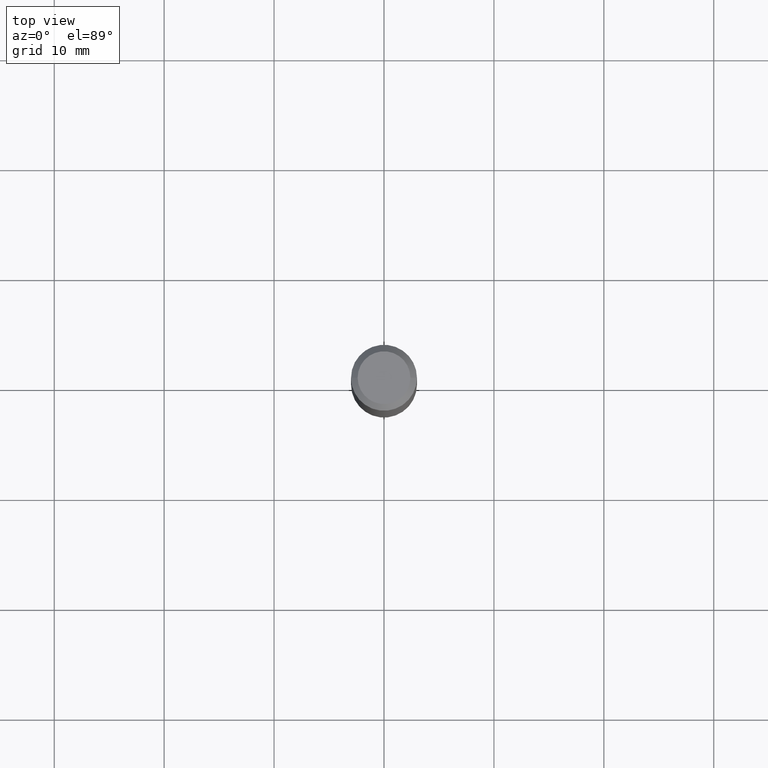
[diagram: clean part render]
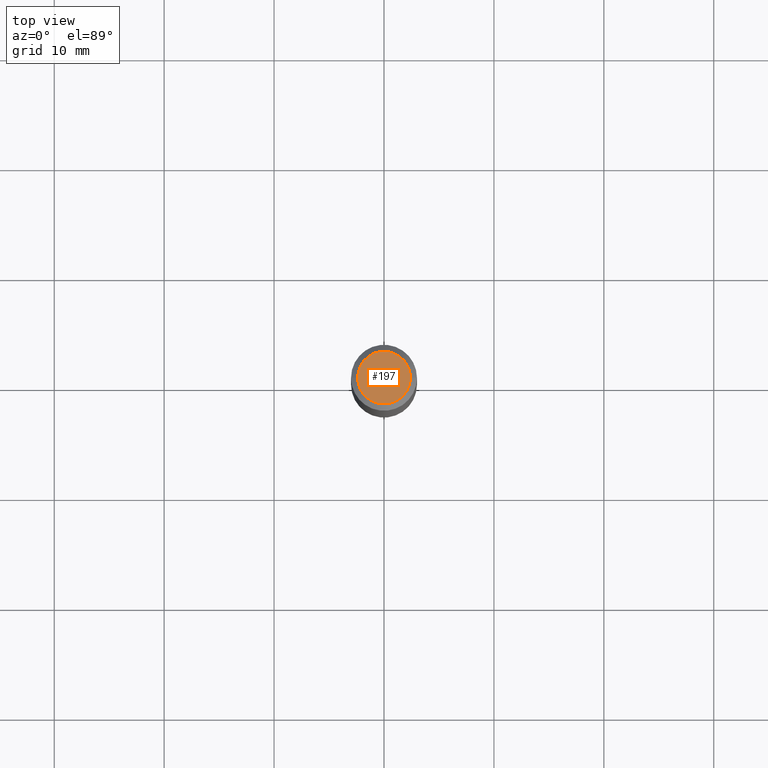
[diagram: same view with one face highlighted and labeled with its STEP entity id]
A machine part, top view. The second image highlights one B-rep face of the part: STEP entity #197.
In plain terms, the highlighted planar face has unit normal (0, -0, -1).
Its self-contained STEP definition (entity closure, byte-faithful):
#57 = CARTESIAN_POINT ( 'NONE',  ( 4.716267017698007905E-46, -6.733579360998555036E-32, -1.928573779297252010E-17 ) ) ;
#62 = CARTESIAN_POINT ( 'NONE',  ( 0.09447999999999998066, -7.704367267948738690E-16, -1.928573779296752193E-17 ) ) ;
#83 = ORIENTED_EDGE ( 'NONE', *, *, #460, .T. ) ;
#89 = DIRECTION ( 'NONE',  ( 1.000000000000000000, -6.982962677686267499E-15, 4.875432709231658792E-29 ) ) ;
#91 = DIRECTION ( 'NONE',  ( -2.445468806185136597E-29, 3.491481338843145583E-15, 1.000000000000000000 ) ) ;
#102 = VERTEX_POINT ( 'NONE', #62 ) ;
#146 = CARTESIAN_POINT ( 'NONE',  ( 2.358133508849003952E-46, -3.366789680499277518E-32, -9.642868896486260050E-18 ) ) ;
#158 = EDGE_LOOP ( 'NONE', ( #83, #190 ) ) ;
#186 = DIRECTION ( 'NONE',  ( 2.438088387897960049E-29, -3.491481338843145188E-15, -1.000000000000000000 ) ) ;
#190 = ORIENTED_EDGE ( 'NONE', *, *, #444, .T. ) ;
#197 = ADVANCED_FACE ( 'NONE', ( #407 ), #399, .F. ) ;
#206 = DIRECTION ( 'NONE',  ( -2.445468806185136597E-29, 3.491481338843145583E-15, 1.000000000000000000 ) ) ;
#209 = DIRECTION ( 'NONE',  ( 1.000000000000000000, -6.982962677686267499E-15, 4.875432709231658792E-29 ) ) ;
#215 = DIRECTION ( 'NONE',  ( -1.000000000000000000, 6.982962677686265922E-15, -4.876176775795935793E-29 ) ) ;
#223 = VERTEX_POINT ( 'NONE', #447 ) ;
#238 = CARTESIAN_POINT ( 'NONE',  ( 4.716267017698007905E-46, -6.733579360998555036E-32, -1.928573779297252010E-17 ) ) ;
#295 = CIRCLE ( 'NONE', #390, 0.09447999999999998066 ) ;
#327 = AXIS2_PLACEMENT_3D ( 'NONE', #146, #186, #215 ) ;
#364 = AXIS2_PLACEMENT_3D ( 'NONE', #238, #206, #209 ) ;
#371 = CIRCLE ( 'NONE', #364, 0.09447999999999998066 ) ;
#390 = AXIS2_PLACEMENT_3D ( 'NONE', #57, #91, #89 ) ;
#399 = PLANE ( 'NONE',  #327 ) ;
#407 = FACE_OUTER_BOUND ( 'NONE', #158, .T. ) ;
#444 = EDGE_CURVE ( 'NONE', #102, #223, #295, .T. ) ;
#447 = CARTESIAN_POINT ( 'NONE',  ( -0.09447999999999998066, 7.009847083995354710E-16, -1.928573779297727792E-17 ) ) ;
#460 = EDGE_CURVE ( 'NONE', #223, #102, #371, .T. ) ;